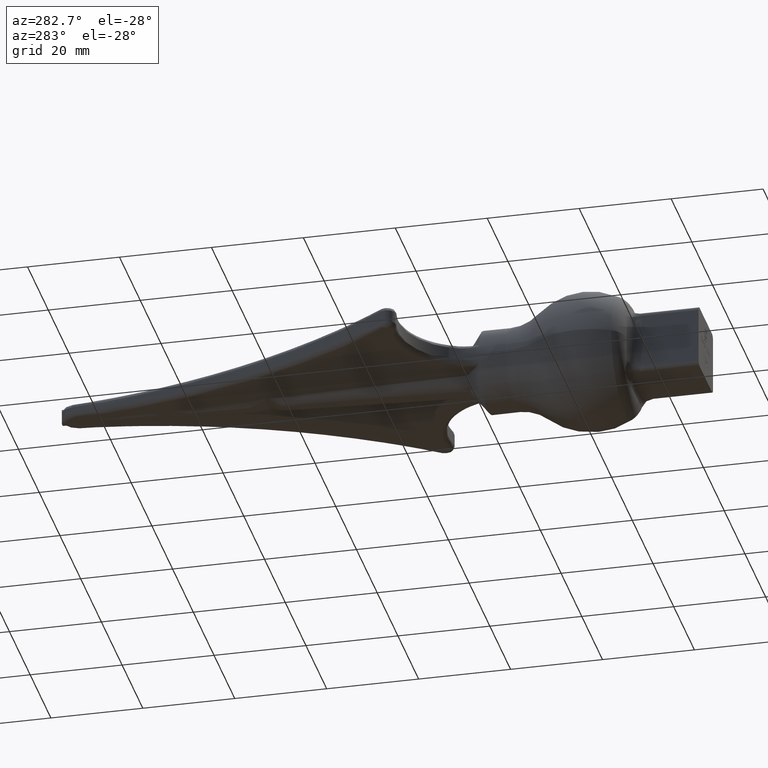
[diagram: clean part render]
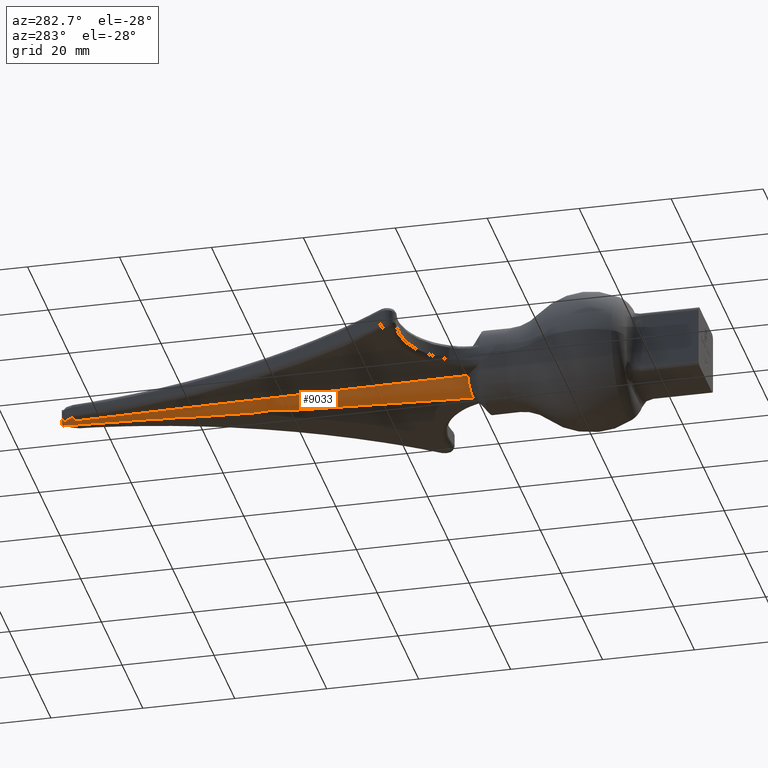
[diagram: same view with one face highlighted and labeled with its STEP entity id]
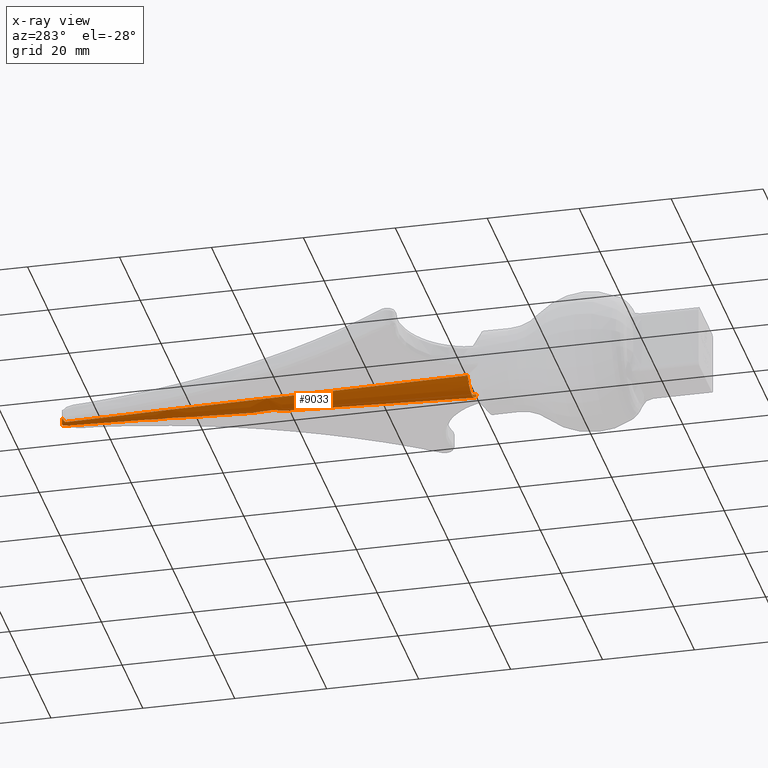
[diagram: x-ray of the same camera — body ghosted, the highlighted face saturated]
A machine part, auxiliary view. The second image highlights one B-rep face of the part: STEP entity #9033.
The next image is the same camera in x-ray: the body ghosted, the highlighted face saturated — about 0% of this face is hidden behind the body in this view.
In plain terms, the highlighted conical surface has half-angle 2.11 deg.
Its self-contained STEP definition (entity closure, byte-faithful):
#73 = CARTESIAN_POINT ( 'NONE',  ( 1.161295911805897418, 94.43955790088325841, -1.249766667137629961 ) ) ;
#133 = CARTESIAN_POINT ( 'NONE',  ( -3.796507904350620688, 20.50237821117869785, -2.284185492513907345 ) ) ;
#211 = EDGE_CURVE ( 'NONE', #11167, #10768, #8954, .T. ) ;
#389 = VERTEX_POINT ( 'NONE', #4223 ) ;
#418 = ORIENTED_EDGE ( 'NONE', *, *, #10092, .F. ) ;
#712 = CARTESIAN_POINT ( 'NONE',  ( 0.9382191756679887362, 92.01903041513209303, -1.531378627209128762 ) ) ;
#930 = CARTESIAN_POINT ( 'NONE',  ( -1.023833648255625395, 94.33528220697641586, -1.371187872106501393 ) ) ;
#935 = ORIENTED_EDGE ( 'NONE', *, *, #4325, .F. ) ;
#1139 = CARTESIAN_POINT ( 'NONE',  ( 0.8785084933353964898, 94.12154558323673825, -1.474952201208797220 ) ) ;
#1157 = CARTESIAN_POINT ( 'NONE',  ( -1.294539548991481936, 84.68681728592720503, -1.608559818042864631 ) ) ;
#1197 = CARTESIAN_POINT ( 'NONE',  ( -1.693392371581444511, 75.51926029769266790, -1.705060417919018079 ) ) ;
#1209 = ORIENTED_EDGE ( 'NONE', *, *, #2492, .T. ) ;
#1562 = DIRECTION ( 'NONE',  ( 0.000000000000000000, 0.000000000000000000, -1.000000000000000000 ) ) ;
#1716 = CARTESIAN_POINT ( 'NONE',  ( -1.620650804282630197, 94.56893874664270072, -0.5136174279634586615 ) ) ;
#1830 = CARTESIAN_POINT ( 'NONE',  ( 1.210185223607522120, 86.51999319112128717, -1.589263229567137836 ) ) ;
#2147 = CARTESIAN_POINT ( 'NONE',  ( 1.292918293314101019, 94.52433493599774295, -1.113640651395770398 ) ) ;
#2171 = CARTESIAN_POINT ( 'NONE',  ( -0.8333524748366105683, 93.85142774900157292, -1.512090234221028284 ) ) ;
#2492 = EDGE_CURVE ( 'NONE', #11167, #8067, #4525, .T. ) ;
#2536 = ORIENTED_EDGE ( 'NONE', *, *, #4595, .T. ) ;
#2553 = DIRECTION ( 'NONE',  ( 0.000000000000000000, -1.000000000000000000, -3.502684209632172712E-18 ) ) ;
#2722 = VERTEX_POINT ( 'NONE', #2907 ) ;
#2845 = CARTESIAN_POINT ( 'NONE',  ( -1.152488212337030138, 94.79334510044733975, -1.251184425608768747 ) ) ;
#2907 = CARTESIAN_POINT ( 'NONE',  ( -4.329915638581164572, 5.830165751651379402, -2.438629834193142720 ) ) ;
#2966 = CARTESIAN_POINT ( 'NONE',  ( 0.8333524748366107904, 93.85142774900157292, -1.512090234221028284 ) ) ;
#3198 = CARTESIAN_POINT ( 'NONE',  ( 1.376963290730248257, 94.56123856191270249, -1.007113205857830041 ) ) ;
#3241 = CARTESIAN_POINT ( 'NONE',  ( 1.578189490799533745, 94.59324613528872305, -0.6446341456696818017 ) ) ;
#3551 = EDGE_LOOP ( 'NONE', ( #8352, #1209, #935, #418, #12531, #2536 ) ) ;
#3574 = CARTESIAN_POINT ( 'NONE',  ( 0.8333524748366107904, 93.85142774900157292, -1.512090234221028284 ) ) ;
#3634 = CARTESIAN_POINT ( 'NONE',  ( 0.3626754743148575266, 94.98447125831462756, -1.655231741714598082 ) ) ;
#3766 = CARTESIAN_POINT ( 'NONE',  ( -0.8333524748366105683, 93.85142774900157292, -1.512090234221028284 ) ) ;
#4031 = CARTESIAN_POINT ( 'NONE',  ( 1.620650804282632862, 94.56893874664270072, -0.5136174279634617701 ) ) ;
#4099 = B_SPLINE_CURVE_WITH_KNOTS ( 'NONE', 3,
 ( #2171, #8437, #7233, #9569, #6361, #930, #9518, #11510, #10626, #5359, #7324, #7423 ),
 .UNSPECIFIED., .F., .F.,
 ( 4, 2, 2, 2, 2, 4 ),
 ( 5.895489459932520814E-16, 0.0002069483286592313249, 0.0004138966573178730606, 0.0008277933146351563153, 0.001241689971952439353, 0.001655586629269722608 ),
 .UNSPECIFIED. ) ;
#4223 = CARTESIAN_POINT ( 'NONE',  ( 4.329915638581229409, 5.830165751651356310, -2.438629834193143164 ) ) ;
#4261 = CARTESIAN_POINT ( 'NONE',  ( 1.520207966987494608, 94.59581075677803597, -0.7713252843133274750 ) ) ;
#4265 = DIRECTION ( 'NONE',  ( 0.000000000000000000, -1.000000000000000000, -3.502684209632172712E-18 ) ) ;
#4325 = EDGE_CURVE ( 'NONE', #389, #8067, #12619, .T. ) ;
#4525 = B_SPLINE_CURVE_WITH_KNOTS ( 'NONE', 3,
 ( #9582, #3241, #4261, #3198, #2147, #73, #9535, #12741, #7437, #6376, #1139, #8500, #10637, #5031 ),
 .UNSPECIFIED., .F., .F.,
 ( 4, 2, 2, 2, 2, 2, 4 ),
 ( 1.651407549306865462E-18, 0.0004134460332994983433, 0.0008268920665989950604, 0.001033615083248734827, 0.001240338099898474593, 0.001447061116548214359, 0.001653784133197954125 ),
 .UNSPECIFIED. ) ;
#4595 = EDGE_CURVE ( 'NONE', #11048, #10768, #4099, .T. ) ;
#4651 = CARTESIAN_POINT ( 'NONE',  ( 1.620650804282632862, 94.56893874664270072, -0.5136174279634617701 ) ) ;
#4872 = CARTESIAN_POINT ( 'NONE',  ( -1.484654784307298359, 94.64484293432168727, -0.8413824806782199683 ) ) ;
#4921 = CARTESIAN_POINT ( 'NONE',  ( -0.3625136825297565202, 94.98450768173792369, -1.655305133683963259 ) ) ;
#5022 = CARTESIAN_POINT ( 'NONE',  ( -1.620650804282630197, 94.56893874664270072, -0.5136174279634586615 ) ) ;
#5031 = CARTESIAN_POINT ( 'NONE',  ( 0.8333524748366107904, 93.85142774900157292, -1.512090234221028284 ) ) ;
#5050 = CARTESIAN_POINT ( 'NONE',  ( 3.259546514224154201, 35.17450772222549205, -2.129742023976571197 ) ) ;
#5126 = EDGE_CURVE ( 'NONE', #11048, #2722, #8145, .T. ) ;
#5136 = CARTESIAN_POINT ( 'NONE',  ( 2.141840020720436222, 64.51708347728856552, -1.820872805502220970 ) ) ;
#5251 = CARTESIAN_POINT ( 'NONE',  ( -2.141844955115666860, 64.51695993396603512, -1.820874105958246947 ) ) ;
#5359 = CARTESIAN_POINT ( 'NONE',  ( -1.519105749131901995, 94.59563235180823426, -0.7732980855322630909 ) ) ;
#5718 = FACE_OUTER_BOUND ( 'NONE', #3551, .T. ) ;
#5724 = CARTESIAN_POINT ( 'NONE',  ( 1.292639777003937285, 94.74793188618302509, -1.149519461325806624 ) ) ;
#5812 = CARTESIAN_POINT ( 'NONE',  ( 0.7070205179205151236, 94.92723840998499441, -1.542257126778896703 ) ) ;
#5887 = CONICAL_SURFACE ( 'NONE', #12094, 1.499999999999999556, 0.03682544972883204648 ) ;
#6337 = DIRECTION ( 'NONE',  ( 0.000000000000000000, 0.000000000000000000, 1.000000000000000000 ) ) ;
#6361 = CARTESIAN_POINT ( 'NONE',  ( -0.9102657066111005113, 94.17935670092062139, -1.453589007238280884 ) ) ;
#6376 = CARTESIAN_POINT ( 'NONE',  ( 0.9112223104234117299, 94.18086239652704705, -1.452917351031205673 ) ) ;
#6441 = CARTESIAN_POINT ( 'NONE',  ( -3.259547802638331770, 35.17447155252164492, -2.129742404710296633 ) ) ;
#6510 = CIRCLE ( 'NONE', #11024, 4.969414945991792010 ) ;
#7205 = CARTESIAN_POINT ( 'NONE',  ( 1.294544498626063023, 84.68670828599165645, -1.608560965410607446 ) ) ;
#7233 = CARTESIAN_POINT ( 'NONE',  ( -0.8368771272679711437, 93.99023371689688133, -1.504505110761218178 ) ) ;
#7309 = CARTESIAN_POINT ( 'NONE',  ( -0.8333524748366105683, 93.85142774900157292, -1.512090234221028284 ) ) ;
#7324 = CARTESIAN_POINT ( 'NONE',  ( -1.578201389937005539, 94.59323932351263409, -0.6445974302266862521 ) ) ;
#7423 = CARTESIAN_POINT ( 'NONE',  ( -1.620650804282630197, 94.56893874664270072, -0.5136174279634586615 ) ) ;
#7437 = CARTESIAN_POINT ( 'NONE',  ( 0.9865730349858359283, 94.28392814539250821, -1.398200048294196085 ) ) ;
#7495 = CARTESIAN_POINT ( 'NONE',  ( -0.9382117186332945558, 92.01916071627105964, -1.531377255618191935 ) ) ;
#7741 = CARTESIAN_POINT ( 'NONE',  ( 0.1848025733334186793, 94.99995289861092829, -1.684121032493554493 ) ) ;
#7784 = CARTESIAN_POINT ( 'NONE',  ( 1.509389591098946992, 94.63263130177668359, -0.8569200195128644504 ) ) ;
#8067 = VERTEX_POINT ( 'NONE', #3574 ) ;
#8145 = B_SPLINE_CURVE_WITH_KNOTS ( 'NONE', 3,
 ( #7309, #7495, #12800, #9462, #1157, #11587, #1197, #5251, #12711, #6441, #133, #12661 ),
 .UNSPECIFIED., .F., .F.,
 ( 4, 2, 2, 2, 2, 4 ),
 ( 0.001150813175589268048, 0.006656910223983476121, 0.01216300727237768463, 0.02317520136916614154, 0.04519958956274301026, 0.08924836594989674077 ),
 .UNSPECIFIED. ) ;
#8224 = CARTESIAN_POINT ( 'NONE',  ( 3.796507069747655283, 20.50240116823617953, -2.284185250860670369 ) ) ;
#8352 = ORIENTED_EDGE ( 'NONE', *, *, #211, .F. ) ;
#8437 = CARTESIAN_POINT ( 'NONE',  ( -0.8293375854774478473, 93.92158226418067102, -1.511351765640195577 ) ) ;
#8500 = CARTESIAN_POINT ( 'NONE',  ( 0.8372967639216843949, 93.99202015270365962, -1.504194476177597828 ) ) ;
#8954 = B_SPLINE_CURVE_WITH_KNOTS ( 'NONE', 3,
 ( #4651, #7784, #5724, #13136, #5812, #3634, #7741, #11032, #4921, #10066, #11123, #2845, #9216, #4872, #12379, #1716 ),
 .UNSPECIFIED., .F., .F.,
 ( 4, 2, 2, 2, 2, 2, 2, 4 ),
 ( 0.005141265219738703693, 0.006226962944732867405, 0.006769811807229943190, 0.007312660669727018975, 0.007855509532224094760, 0.008398358394721172279, 0.008941207257218249799, 0.009484056119715325583 ),
 .UNSPECIFIED. ) ;
#9033 = ADVANCED_FACE ( 'NONE', ( #5718 ), #5887, .T. ) ;
#9216 = CARTESIAN_POINT ( 'NONE',  ( -1.276253279436359467, 94.74217964716174833, -1.127449080433946538 ) ) ;
#9301 = CARTESIAN_POINT ( 'NONE',  ( 1.031794671264294028, 90.18614439246520931, -1.550672164289832677 ) ) ;
#9462 = CARTESIAN_POINT ( 'NONE',  ( -1.210179520734502079, 86.52011483803049430, -1.589261949073355717 ) ) ;
#9518 = CARTESIAN_POINT ( 'NONE',  ( -1.117212749518791570, 94.41110145494418759, -1.295292377358328473 ) ) ;
#9535 = CARTESIAN_POINT ( 'NONE',  ( 1.116965791302592992, 94.40666531808882667, -1.290865801215834052 ) ) ;
#9569 = CARTESIAN_POINT ( 'NONE',  ( -0.8782572048579067037, 94.12121585593010309, -1.475117835612504757 ) ) ;
#9582 = CARTESIAN_POINT ( 'NONE',  ( 1.620650804282632862, 94.56893874664270072, -0.5136174279634617701 ) ) ;
#9624 = CARTESIAN_POINT ( 'NONE',  ( -7.139893826258384057E-16, 5.830165751651379402, 0.000000000000000000 ) ) ;
#10066 = CARTESIAN_POINT ( 'NONE',  ( -0.7075285510192409477, 94.92714442896738092, -1.542070117663402185 ) ) ;
#10092 = EDGE_CURVE ( 'NONE', #2722, #389, #6510, .T. ) ;
#10626 = CARTESIAN_POINT ( 'NONE',  ( -1.376948755637700472, 94.56114674652577889, -1.006977385362733957 ) ) ;
#10637 = CARTESIAN_POINT ( 'NONE',  ( 0.8293346744794769521, 93.92163312975453948, -1.511351230213102248 ) ) ;
#10768 = VERTEX_POINT ( 'NONE', #5022 ) ;
#11024 = AXIS2_PLACEMENT_3D ( 'NONE', #9624, #4265, #6337 ) ;
#11032 = CARTESIAN_POINT ( 'NONE',  ( -0.1831359704619580642, 95.00004688852222046, -1.684299615685638685 ) ) ;
#11048 = VERTEX_POINT ( 'NONE', #3766 ) ;
#11094 = CARTESIAN_POINT ( 'NONE',  ( 0.000000000000000000, 100.0000000000000000, 3.327549999150563653E-16 ) ) ;
#11123 = CARTESIAN_POINT ( 'NONE',  ( -0.8660643649569478297, 94.88653587439783621, -1.460143356182133756 ) ) ;
#11167 = VERTEX_POINT ( 'NONE', #4031 ) ;
#11289 = CARTESIAN_POINT ( 'NONE',  ( 1.693391090635074869, 75.51929048268520717, -1.705060100182254956 ) ) ;
#11510 = CARTESIAN_POINT ( 'NONE',  ( -1.292209962499377696, 94.52394117310161903, -1.114438690390721520 ) ) ;
#11587 = CARTESIAN_POINT ( 'NONE',  ( -1.539919268434503552, 79.18656535118752515, -1.666457206829598858 ) ) ;
#12094 = AXIS2_PLACEMENT_3D ( 'NONE', #11094, #2553, #1562 ) ;
#12379 = CARTESIAN_POINT ( 'NONE',  ( -1.565023539219483562, 94.60078311131931628, -0.6852584132676284856 ) ) ;
#12458 = CARTESIAN_POINT ( 'NONE',  ( 1.539921106373351112, 79.18652025821083384, -1.666457681492510723 ) ) ;
#12531 = ORIENTED_EDGE ( 'NONE', *, *, #5126, .F. ) ;
#12619 = B_SPLINE_CURVE_WITH_KNOTS ( 'NONE', 3,
 ( #13523, #8224, #5050, #13612, #5136, #11289, #12458, #7205, #1830, #9301, #712, #2966 ),
 .UNSPECIFIED., .F., .F.,
 ( 4, 2, 2, 2, 2, 4 ),
 ( 0.0008309600641078548205, 0.04487918158011957454, 0.06690329233812541965, 0.07791534771712835261, 0.08342137540662980522, 0.08892740309613124394 ),
 .UNSPECIFIED. ) ;
#12661 = CARTESIAN_POINT ( 'NONE',  ( -4.329915638581164572, 5.830165751651379402, -2.438629834193142720 ) ) ;
#12711 = CARTESIAN_POINT ( 'NONE',  ( -2.424621932577562866, 57.18146734130995412, -1.898089817459890583 ) ) ;
#12741 = CARTESIAN_POINT ( 'NONE',  ( 1.029797672929694929, 94.32909142459762109, -1.364999584138793409 ) ) ;
#12800 = CARTESIAN_POINT ( 'NONE',  ( -1.031788890954630666, 90.18625873917980584, -1.550670960640205154 ) ) ;
#13136 = CARTESIAN_POINT ( 'NONE',  ( 0.8648340532555400806, 94.88684203524572069, -1.460747180451554161 ) ) ;
#13523 = CARTESIAN_POINT ( 'NONE',  ( 4.329915638581229409, 5.830165751651356310, -2.438629834193143164 ) ) ;
#13612 = CARTESIAN_POINT ( 'NONE',  ( 2.424618018937904740, 57.18156939228115476, -1.898088743239141341 ) ) ;